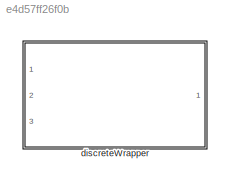
MODEL slx_e4d57ff26f0b
KIND library
CONFIG AbsTol = auto
CONFIG EnableMultiTasking = off
CONFIG FixedStep = auto
CONFIG MaxStep = auto
CONFIG MinStep = auto
CONFIG RelTol = 1e-3
CONFIG SampleTimeConstraint = Unconstrained
CONFIG SolverName = VariableStepAuto
CONFIG StartTime = 0.0
CONFIG StopTime = 10.0
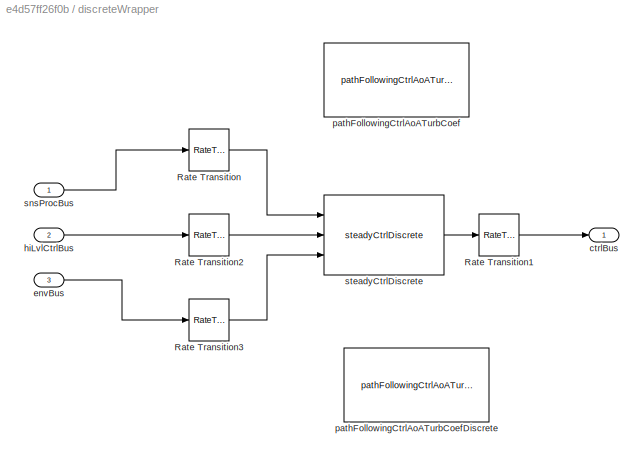
BLOCK [SubSystem] discreteWrapper
  InitFcn = initializeBussesFromBlock(gcb)
  Ports = [3, 1]
  RequestExecContextInheritance = off
BLOCK [RateTransition] discreteWrapper/Rate Transition
  OutPortSampleTime = fltCtrl.Ts.Value
BLOCK [RateTransition] discreteWrapper/Rate Transition1
BLOCK [RateTransition] discreteWrapper/Rate Transition2
  OutPortSampleTime = fltCtrl.Ts.Value
BLOCK [RateTransition] discreteWrapper/Rate Transition3
  OutPortSampleTime = fltCtrl.Ts.Value
BLOCK [Outport] discreteWrapper/ctrlBus
BLOCK [Inport] discreteWrapper/envBus
  Port = 3
BLOCK [Inport] discreteWrapper/hiLvlCtrlBus
  Port = 2
BLOCK [Reference] discreteWrapper/pathFollowingCtrlAoATurbCoef  REF=pathFollowingCtrlAoATurbCoefD_cl/pathFollowingCtrlAoATurbCoef
  Commented = on
  Ports = [3, 1]
  SourceBlock = pathFollowingCtrlAoATurbCoefD_cl/pathFollowingCtrlAoATurbCoef
BLOCK [Reference] discreteWrapper/pathFollowingCtrlAoATurbCoefDiscrete  REF=pathFollowingCtrlAoATurbCoefDiscrete_cl/pathFollowingCtrlAoATurbCoefDiscrete
  Commented = on
  Ports = [3, 1]
  SourceBlock = pathFollowingCtrlAoATurbCoefDiscrete_cl/pathFollowingCtrlAoATurbCoefDiscrete
BLOCK [Inport] discreteWrapper/snsProcBus
BLOCK [Reference] discreteWrapper/steadyCtrlDiscrete  REF=steadyCtrlDiscrete/steadyCtrlDiscrete
  Ports = [3, 1]
  SourceBlock = steadyCtrlDiscrete/steadyCtrlDiscrete
LINE discreteWrapper/Rate Transition1:1 -> discreteWrapper/ctrlBus:1
LINE discreteWrapper/Rate Transition2:1 -> discreteWrapper/steadyCtrlDiscrete:2
LINE discreteWrapper/Rate Transition3:1 -> discreteWrapper/steadyCtrlDiscrete:3
LINE discreteWrapper/Rate Transition:1 -> discreteWrapper/steadyCtrlDiscrete:1
LINE discreteWrapper/envBus:1 -> discreteWrapper/Rate Transition3:1
LINE discreteWrapper/hiLvlCtrlBus:1 -> discreteWrapper/Rate Transition2:1
LINE discreteWrapper/snsProcBus:1 -> discreteWrapper/Rate Transition:1
LINE discreteWrapper/steadyCtrlDiscrete:1 -> discreteWrapper/Rate Transition1:1
